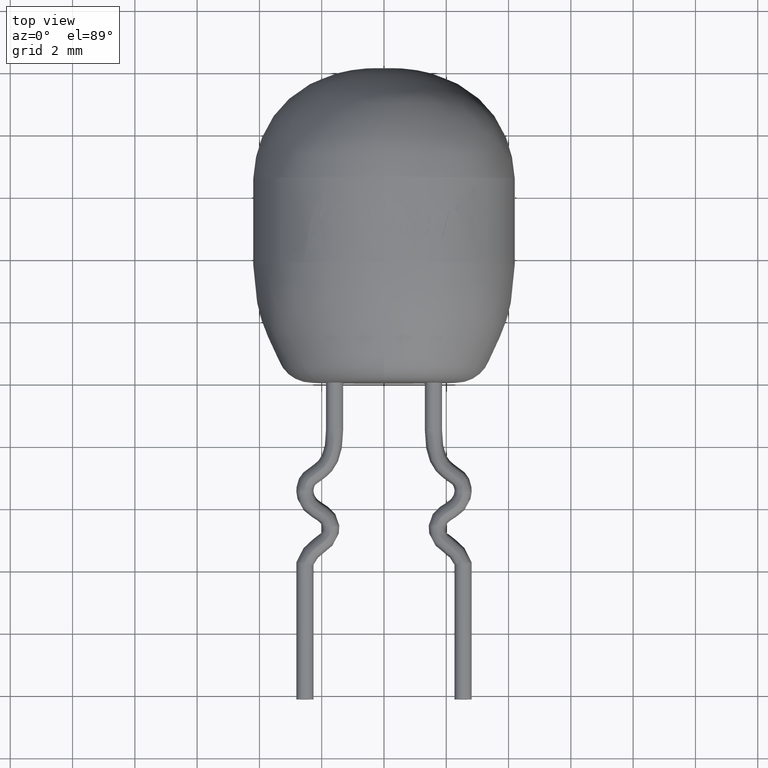
[diagram: clean part render]
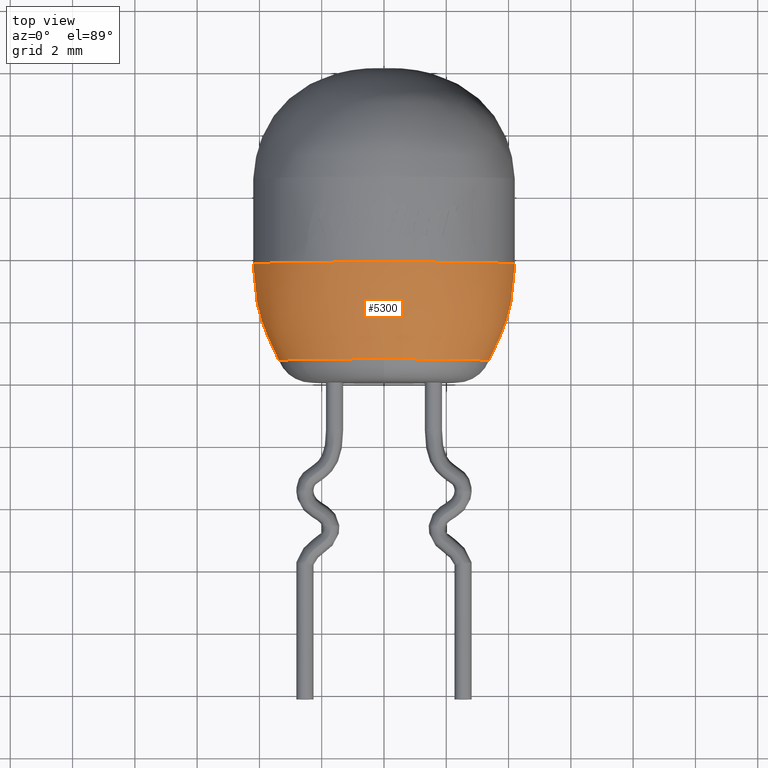
[diagram: same view with one face highlighted and labeled with its STEP entity id]
A machine part, top view. The second image highlights one B-rep face of the part: STEP entity #5300.
In plain terms, the highlighted face is a freeform B-spline surface patch.
Its self-contained STEP definition (entity closure, byte-faithful):
#5 = CARTESIAN_POINT ( 'NONE',  ( 3.635625108815737400, 1.382982788859700800, 7.271250217631473900 ) ) ;
#40 = CARTESIAN_POINT ( 'NONE',  ( -3.369081478102323900, 0.7084151299315651900, 6.738162956204647900 ) ) ;
#152 = ORIENTED_EDGE ( 'NONE', *, *, #4609, .T. ) ;
#256 = CARTESIAN_POINT ( 'NONE',  ( 0.0000000000000000000, 0.7084151299315653000, 0.0000000000000000000 ) ) ;
#391 = CARTESIAN_POINT ( 'NONE',  ( -3.635625108815737900, 1.382982788859700600, 4.452356652410940400E-016 ) ) ;
#442 = EDGE_CURVE ( 'NONE', #4467, #5096, #2127, .T. ) ;
#444 = CARTESIAN_POINT ( 'NONE',  ( -4.200000000000000200, 3.803860494000000300, 5.143516556418883900E-016 ) ) ;
#698 = DIRECTION ( 'NONE',  ( 0.0000000000000000000, 0.0000000000000000000, -1.000000000000000000 ) ) ;
#802 = DIRECTION ( 'NONE',  ( -0.0000000000000000000, -1.000000000000000000, -0.0000000000000000000 ) ) ;
#840 = CIRCLE ( 'NONE', #5315, 4.200000000000000200 ) ;
#895 = CARTESIAN_POINT ( 'NONE',  ( 4.147706667739766000, 1.971164003438447700, 8.295413335479528500 ) ) ;
#898 = CARTESIAN_POINT ( 'NONE',  ( 3.369081478102325300, 0.7084151299315653000, 0.0000000000000000000 ) ) ;
#1132 = DIRECTION ( 'NONE',  ( 0.0000000000000000000, 1.000000000000000000, 0.0000000000000000000 ) ) ;
#1135 = CARTESIAN_POINT ( 'NONE',  ( -4.200000000000000200, 3.803860493999999800, 5.143516556418883900E-016 ) ) ;
#1544 = CARTESIAN_POINT ( 'NONE',  ( 0.0000000000000000000, 0.7084151299315653000, 0.0000000000000000000 ) ) ;
#1648 = EDGE_CURVE ( 'NONE', #2195, #1939, #4903, .T. ) ;
#1691 = DIRECTION ( 'NONE',  ( -0.0000000000000000000, -1.000000000000000000, -0.0000000000000000000 ) ) ;
#1726 = AXIS2_PLACEMENT_3D ( 'NONE', #1544, #1132, #698 ) ;
#1728 = ORIENTED_EDGE ( 'NONE', *, *, #442, .T. ) ;
#1791 = CARTESIAN_POINT ( 'NONE',  ( 3.635625108815737900, 1.382982788859700600, 0.0000000000000000000 ) ) ;
#1844 = CARTESIAN_POINT ( 'NONE',  ( -4.147706667739764300, 1.971164003438447700, 8.295413335479528500 ) ) ;
#1855 = CARTESIAN_POINT ( 'NONE',  ( 4.200000000000000200, 3.803860493999999800, 0.0000000000000000000 ) ) ;
#1932 = EDGE_CURVE ( 'NONE', #4901, #2504, #4998, .T. ) ;
#1939 = VERTEX_POINT ( 'NONE', #5149 ) ;
#2127 = CIRCLE ( 'NONE', #4316, 3.369081478102325300 ) ;
#2188 = CARTESIAN_POINT ( 'NONE',  ( 4.200000000000000200, 3.803860493999999800, 0.0000000000000000000 ) ) ;
#2195 = VERTEX_POINT ( 'NONE', #1855 ) ;
#2261 = CARTESIAN_POINT ( 'NONE',  ( 3.369081478102325300, 0.7084151299315651900, 6.738162956204647900 ) ) ;
#2287 = CARTESIAN_POINT ( 'NONE',  ( -4.147706667739765200, 1.971164003438447400, 5.079475694449638200E-016 ) ) ;
#2504 = VERTEX_POINT ( 'NONE', #1135 ) ;
#2521 = DIRECTION ( 'NONE',  ( 0.0000000000000000000, 0.0000000000000000000, -1.000000000000000000 ) ) ;
#2567 = AXIS2_PLACEMENT_3D ( 'NONE', #5658, #802, #2521 ) ;
#2749 = ORIENTED_EDGE ( 'NONE', *, *, #5589, .T. ) ;
#2840 = ORIENTED_EDGE ( 'NONE', *, *, #1932, .T. ) ;
#2943 = FACE_OUTER_BOUND ( 'NONE', #5192, .T. ) ;
#3010 = CARTESIAN_POINT ( 'NONE',  ( 0.0000000000000000000, 3.803860493999999800, 0.0000000000000000000 ) ) ;
#3025 = CARTESIAN_POINT ( 'NONE',  ( 4.147706667739765200, 1.971164003438447400, 0.0000000000000000000 ) ) ;
#3027 = DIRECTION ( 'NONE',  ( 0.0000000000000000000, 0.0000000000000000000, -1.000000000000000000 ) ) ;
#3089 = EDGE_CURVE ( 'NONE', #2504, #4467, #3925, .T. ) ;
#3097 = CARTESIAN_POINT ( 'NONE',  ( 3.369081478102325300, 0.7084151299315653000, 0.0000000000000000000 ) ) ;
#3134 = CARTESIAN_POINT ( 'NONE',  ( -3.369081478102325300, 0.7084151299315653000, 4.125934848224646600E-016 ) ) ;
#3233 = ORIENTED_EDGE ( 'NONE', *, *, #1648, .F. ) ;
#3335 = DIRECTION ( 'NONE',  ( 0.0000000000000000000, 1.000000000000000000, 0.0000000000000000000 ) ) ;
#3392 = CARTESIAN_POINT ( 'NONE',  ( -3.369081478102325300, 0.7084151299315653000, 4.634725702321764000E-016 ) ) ;
#3517 = CARTESIAN_POINT ( 'NONE',  ( 4.147706667739765200, 1.971164003438447400, 0.0000000000000000000 ) ) ;
#3719 = ORIENTED_EDGE ( 'NONE', *, *, #3089, .T. ) ;
#3912 = CARTESIAN_POINT ( 'NONE',  ( 3.635625108815737900, 1.382982788859700600, 0.0000000000000000000 ) ) ;
#3925 = B_SPLINE_CURVE_WITH_KNOTS ( 'NONE', 3,
 ( #4756, #4305, #391, #3392 ),
 .UNSPECIFIED., .F., .F.,
 ( 4, 4 ),
 ( 0.0000000000000000000, 0.7596440167755027500 ),
 .UNSPECIFIED. ) ;
#3993 = CARTESIAN_POINT ( 'NONE',  ( -3.635625108815737900, 1.382982788859700600, 4.452356652410941400E-016 ) ) ;
#4185 = CARTESIAN_POINT ( 'NONE',  ( 4.125934848224646600E-016, 0.7084151299315653000, 3.369081478102325300 ) ) ;
#4305 = CARTESIAN_POINT ( 'NONE',  ( -4.147706667739765200, 1.971164003438447400, 5.079475694449638200E-016 ) ) ;
#4316 = AXIS2_PLACEMENT_3D ( 'NONE', #256, #3335, #5583 ) ;
#4398 = CARTESIAN_POINT ( 'NONE',  ( -4.199999999999999300, 3.803860494000000300, 8.399999999999998600 ) ) ;
#4448 = CARTESIAN_POINT ( 'NONE',  ( 4.200000000000000200, 3.803860494000000300, 0.0000000000000000000 ) ) ;
#4467 = VERTEX_POINT ( 'NONE', #4629 ) ;
#4609 = EDGE_CURVE ( 'NONE', #2195, #4901, #840, .T. ) ;
#4629 = CARTESIAN_POINT ( 'NONE',  ( -3.369081478102325300, 0.7084151299315653000, 4.634725702321764000E-016 ) ) ;
#4756 = CARTESIAN_POINT ( 'NONE',  ( -4.200000000000000200, 3.803860493999999800, 5.143516556418883900E-016 ) ) ;
#4788 = CIRCLE ( 'NONE', #1726, 3.369081478102325300 ) ;
#4885 = CARTESIAN_POINT ( 'NONE',  ( -3.635625108815737000, 1.382982788859700800, 7.271250217631474800 ) ) ;
#4901 = VERTEX_POINT ( 'NONE', #4925 ) ;
#4903 = B_SPLINE_CURVE_WITH_KNOTS ( 'NONE', 3,
 ( #2188, #3025, #3912, #898 ),
 .UNSPECIFIED., .F., .F.,
 ( 4, 4 ),
 ( 0.0000000000000000000, 0.7596440167755027500 ),
 .UNSPECIFIED. ) ;
#4925 = CARTESIAN_POINT ( 'NONE',  ( 5.143516556418883900E-016, 3.803860493999999800, 4.200000000000000200 ) ) ;
#4998 = CIRCLE ( 'NONE', #2567, 4.200000000000000200 ) ;
#5096 = VERTEX_POINT ( 'NONE', #4185 ) ;
#5149 = CARTESIAN_POINT ( 'NONE',  ( 3.369081478102325300, 0.7084151299315653000, 0.0000000000000000000 ) ) ;
#5192 = EDGE_LOOP ( 'NONE', ( #2840, #3719, #1728, #2749, #3233, #152 ) ) ;
#5300 = ADVANCED_FACE ( 'NONE', ( #2943 ), #5697, .F. ) ;
#5315 = AXIS2_PLACEMENT_3D ( 'NONE', #3010, #1691, #3027 ) ;
#5583 = DIRECTION ( 'NONE',  ( 0.0000000000000000000, 0.0000000000000000000, -1.000000000000000000 ) ) ;
#5589 = EDGE_CURVE ( 'NONE', #5096, #1939, #4788, .T. ) ;
#5658 = CARTESIAN_POINT ( 'NONE',  ( 0.0000000000000000000, 3.803860493999999800, 0.0000000000000000000 ) ) ;
#5697 =( BOUNDED_SURFACE ( )  B_SPLINE_SURFACE ( 3, 3, ( 
 ( #4448, #5738, #4398, #444 ),
 ( #3517, #895, #1844, #2287 ),
 ( #1791, #5, #4885, #3993 ),
 ( #3097, #2261, #40, #3134 ) ),
 .UNSPECIFIED., .F., .F., .T. ) 
 B_SPLINE_SURFACE_WITH_KNOTS ( ( 4, 4 ),
 ( 4, 4 ),
 ( 0.0000000000000000000, 0.7596440167755026400 ),
 ( 0.0000000000000000000, 1.000000000000000000 ),
 .UNSPECIFIED. ) 
 GEOMETRIC_REPRESENTATION_ITEM ( )  RATIONAL_B_SPLINE_SURFACE ( (
 ( 1.000000000000000000, 0.3333333333333334300, 0.3333333333333334300, 1.000000000000000000),
 ( 1.000000000000000000, 0.3333333333333334300, 0.3333333333333334300, 1.000000000000000000),
 ( 1.000000000000000000, 0.3333333333333334300, 0.3333333333333334300, 1.000000000000000000),
 ( 1.000000000000000000, 0.3333333333333334300, 0.3333333333333334300, 1.000000000000000000) ) ) 
 REPRESENTATION_ITEM ( '' )  SURFACE ( )  );
#5738 = CARTESIAN_POINT ( 'NONE',  ( 4.200000000000000200, 3.803860494000000300, 8.399999999999998600 ) ) ;